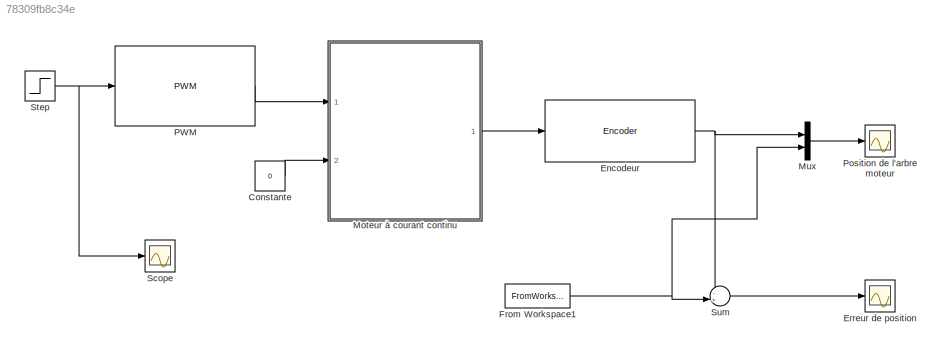
MODEL slx_78309fb8c34e
KIND model
CONFIG AbsTol = auto
CONFIG FixedStep = -0.01
CONFIG MaxStep = auto
CONFIG MinStep = auto
CONFIG PostLoadFcn = load('LeftInput_Measures.mat');\nload('LeftOutput_Measures.mat');\nParametres_Rover
CONFIG RelTol = 1e-3
CONFIG SampleTimeConstraint = Unconstrained
CONFIG Solver = ode23t
CONFIG SolverMode = Auto
CONFIG SolverName = ode23t
CONFIG StartTime = 0.0
CONFIG StopTime = 10.0
BLOCK [Constant] Constante
  Value = 0
BLOCK [Reference] Encodeur  REF=SingleMotor_Duty_to_inc/Encoder
  EncRes = EncRes
  Ports = [1, 1]
  SourceBlock = SingleMotor_Duty_to_inc/Encoder
BLOCK [Scope] Erreur de position
  Floating = off
  LimitDataPoints = off
  NumInputPorts = 1
  Ports = [1]
  SaveName = ScopeData1
  TimeRange = 10
  YMax = 100
  YMin = -1300
BLOCK [FromWorkspace] From Workspace1
  SampleTime = 0
  VariableName = LeftOutput
  ZeroCross = on
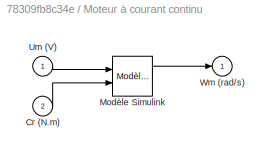
BLOCK [SubSystem] Moteur à courant continu
  AttributesFormatString = %<BlockChoice>
  BlockChoice = Modèle Simulink
  MemberBlocks = Modèle Simscape,Modèle Simulink
  Ports = [2, 1]
  RequestExecContextInheritance = off
  TemplateBlock = SingleMotor_V_to_rads/DC Motor
BLOCK [Inport] Moteur à courant continu/Cr (N.m)
  IconDisplay = Port number
  Port = 2
BLOCK [Reference] Moteur à courant continu/Modèle Simulink  REF=SingleMotor_V_to_rads/Modèle Simulink
  Jm_lib = Jm
  Kphi_lib = Kphi
  Lm_lib = Lm
  Ports = [2, 1]
  Rm_lib = Rm
  SourceBlock = SingleMotor_V_to_rads/Modèle Simulink
  bm_lib = bm
BLOCK [Inport] Moteur à courant continu/Um (V)
  IconDisplay = Port number
BLOCK [Outport] Moteur à courant continu/Wm (rad//s)
  IconDisplay = Port number
BLOCK [Mux] Mux
  DisplayOption = bar
  Inputs = 2
  Ports = [2, 1]
BLOCK [Reference] PWM  REF=SingleMotor_Duty_to_inc/PWM
  FreqTriangle = FreqPWM
  Ports = [1, 1]
  SourceBlock = SingleMotor_Duty_to_inc/PWM
BLOCK [Scope] Position de l'arbre moteur
  Floating = off
  LimitDataPoints = off
  NumInputPorts = 1
  Ports = [1]
  YMax = 8500
  YMin = 0
BLOCK [Scope] Scope
  Floating = off
  LimitDataPoints = off
  NumInputPorts = 1
  Ports = [1]
  SaveName = ScopeData2
BLOCK [Step] Step
  After = 50
  SampleTime = 0
  Time = 3
BLOCK [Sum] Sum
  IconShape = round
  InputSameDT = off
  Inputs = -+|
  OutDataTypeStr = Inherit: Inherit via internal rule
  Ports = [2, 1]
  SaturateOnIntegerOverflow = off
LINE Constante:1 -> Moteur à courant continu:2
NET Encodeur:1 -> Mux:1, Sum:1
NET From Workspace1:1 -> Mux:2, Sum:2
LINE Moteur à courant continu:1 -> Encodeur:1
LINE Mux:1 -> Position de l'arbre moteur:1
LINE PWM:1 -> Moteur à courant continu:1
NET Step:1 -> PWM:1, Scope:1
LINE Sum:1 -> Erreur de position:1
note: NET lines group one-source signal fan-out (src -> all destinations, sorted); 1:1 wires keep LINE
